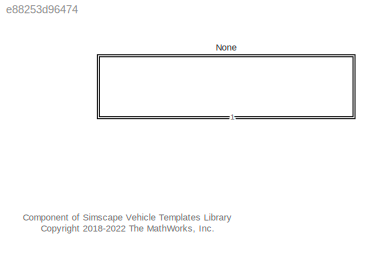
MODEL slx_e88253d96474
KIND library
CONFIG AbsTol = auto
CONFIG EnableMultiTasking = off
CONFIG FixedStep = auto
CONFIG MaxStep = auto
CONFIG MinStep = auto
CONFIG RelTol = 1e-3
CONFIG SampleTimeConstraint = Unconstrained
CONFIG SolverName = VariableStepAuto
CONFIG StartTime = 0.0
CONFIG StopTime = 10.0
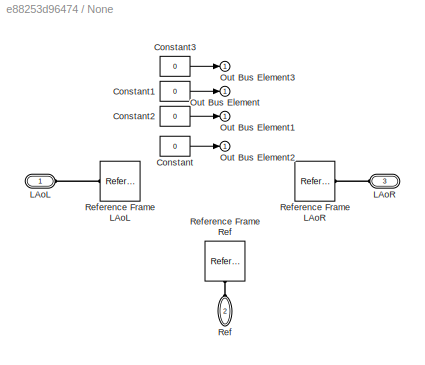
BLOCK [SubSystem]  None
  NameLocation = left
  Ports = [0, 1, 0, 0, 0, 3]
  RequestExecContextInheritance = off
BLOCK [Constant]  None/Constant
  Value = 0
BLOCK [Constant]  None/Constant1
  Value = 0
BLOCK [Constant]  None/Constant2
  Value = 0
BLOCK [Constant]  None/Constant3
  Value = 0
BLOCK [PMIOPort]  None/LAoL
  Side = Left
BLOCK [PMIOPort]  None/LAoR
  Port = 3
  Side = Left
BLOCK [Outport]  None/Out Bus Element
  VectorParamsAs1DForOutWhenUnconnected = off
BLOCK [Outport]  None/Out Bus Element1
  VectorParamsAs1DForOutWhenUnconnected = off
BLOCK [Outport]  None/Out Bus Element2
  VectorParamsAs1DForOutWhenUnconnected = off
BLOCK [Outport]  None/Out Bus Element3
  VectorParamsAs1DForOutWhenUnconnected = off
BLOCK [PMIOPort]  None/Ref
  NameLocation = left
  Port = 2
  Side = Left
BLOCK [Reference]  None/Reference Frame LAoL  REF=sm_lib/Frames and
Transforms/Reference
Frame
  Ports = [0, 0, 0, 0, 0, 0, 1]
  SourceBlock = sm_lib/Frames and\nTransforms/Reference\nFrame
  SourceProductBaseCode = MS
  SourceType = Reference\nFrame
BLOCK [Reference]  None/Reference Frame LAoR  REF=sm_lib/Frames and
Transforms/Reference
Frame
  Ports = [0, 0, 0, 0, 0, 0, 1]
  SourceBlock = sm_lib/Frames and\nTransforms/Reference\nFrame
  SourceProductBaseCode = MS
  SourceType = Reference\nFrame
BLOCK [Reference]  None/Reference Frame Ref  REF=sm_lib/Frames and
Transforms/Reference
Frame
  NameLocation = left
  Ports = [0, 0, 0, 0, 0, 0, 1]
  SourceBlock = sm_lib/Frames and\nTransforms/Reference\nFrame
  SourceProductBaseCode = MS
  SourceType = Reference\nFrame
ANNOTATION (root): Component of Simscape Vehicle Templates Library <copyright redacted>
LINE  None/Constant1:1 ->  None/Out Bus Element:1
LINE  None/Constant2:1 ->  None/Out Bus Element1:1
LINE  None/Constant3:1 ->  None/Out Bus Element3:1
LINE  None/Constant:1 ->  None/Out Bus Element2:1
PLINE  None/LAoL:RConn1 --  None/Reference Frame LAoL:RConn1
PLINE  None/LAoR:RConn1 --  None/Reference Frame LAoR:RConn1
PLINE  None/Ref:RConn1 --  None/Reference Frame Ref:RConn1
